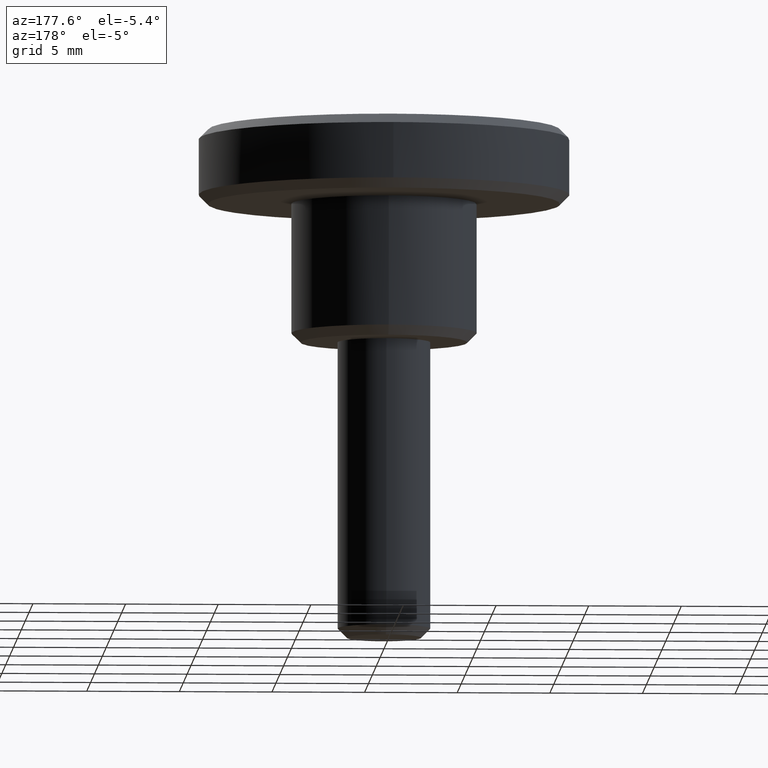
[diagram: clean part render]
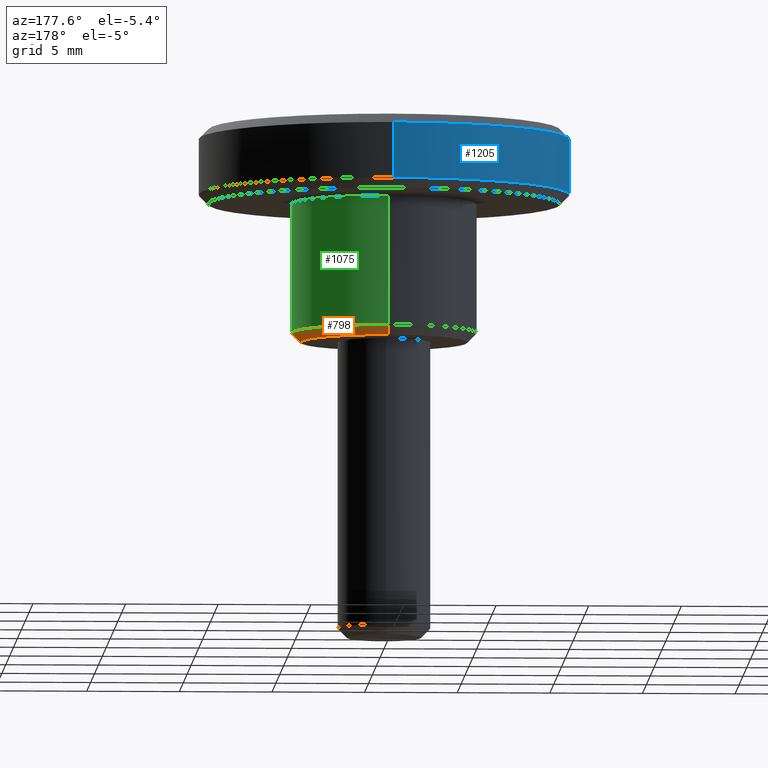
[diagram: same view with three faces highlighted in distinct colors, each labeled with its STEP entity id]
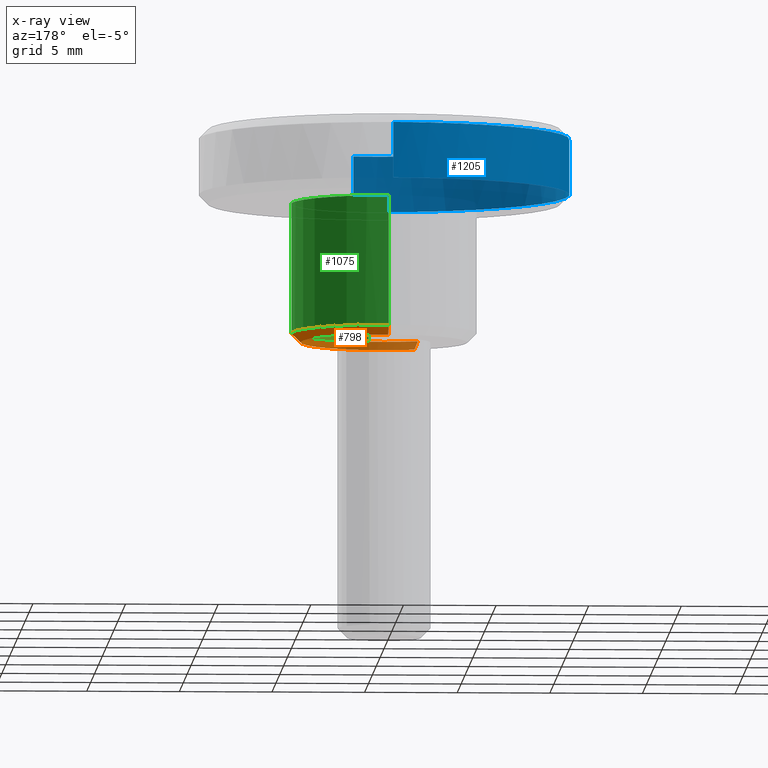
[diagram: x-ray of the same camera — body ghosted, the three highlighted faces saturated]
A machine part, auxiliary view with three faces highlighted in distinct colors.
The next image is the same camera in x-ray (body ghosted, the three faces saturated) — at least one of them is partly hidden behind the body in this view.
Their STEP definitions:

[orange] entity #798 — the highlighted face is a freeform B-spline surface patch.
#677=CARTESIAN_POINT('',(-1.813916751045586,-4.104553845459481,-0.012499999999999));
#678=CARTESIAN_POINT('',(-0.928656247279884,-4.495775137049067,-0.012499999999999));
#679=CARTESIAN_POINT('',(0.039160328048953,-4.487329129750467,-0.012499999999999));
#680=CARTESIAN_POINT('',(4.526489457799420,-4.448168801701514,-0.012499999999999));
#681=CARTESIAN_POINT('',(4.487329129750467,0.039160328048953,-0.012499999999999));
#682=CARTESIAN_POINT('',(4.448168801701514,4.526489457799420,-0.012499999999999));
#683=CARTESIAN_POINT('',(-0.039160328048953,4.487329129750467,-0.012499999999999));
#684=CARTESIAN_POINT('',(-2.026256170161715,-4.585038177925872,0.512812499999944));
#685=CARTESIAN_POINT('',(-1.037365937508121,-5.022056335195270,0.512812499999944));
#686=CARTESIAN_POINT('',(0.043744486227942,-5.012621627460113,0.512812499999944));
#687=CARTESIAN_POINT('',(5.056366113688056,-4.968877141232172,0.512812499999944));
#688=CARTESIAN_POINT('',(5.012621627460113,0.043744486227942,0.512812499999944));
#689=CARTESIAN_POINT('',(4.968877141232172,5.056366113688056,0.512812499999944));
#690=CARTESIAN_POINT('',(-0.043744486227942,5.012621627460113,0.512812499999944));
#698=(BOUNDED_SURFACE()B_SPLINE_SURFACE(2,1,((#677,#684),(#678,#685),(#679,#686),(#680,#687),(#681,#688),(#682,#689),(#683,#690)),.UNSPECIFIED.,.F.,.F.,.U.)B_SPLINE_SURFACE_WITH_KNOTS((3,2,2,3),(2,2),(0.0,2.325539913909386,10.631039606442901,18.936539298976420),(0.0,1.0),.UNSPECIFIED.)GEOMETRIC_REPRESENTATION_ITEM()RATIONAL_B_SPLINE_SURFACE(((0.881905454174416,0.881905454174416),(0.917989898732233,0.917989898732233),(1.0,1.0),(0.707106781186548,0.707106781186548),(1.0,1.0),(0.707106781186548,0.707106781186548),(1.0,1.0)))REPRESENTATION_ITEM('')SURFACE());
#699=CARTESIAN_POINT('',(-2.021077159957113,-4.573319047859597,0.500000000001518));
#700=VERTEX_POINT('',#699);
#701=CARTESIAN_POINT('',(0.620631770546321,-4.961332099882004,0.499999999999943));
#702=VERTEX_POINT('',#701);
#703=CARTESIAN_POINT('',(-2.021077159957113,-4.573319047859597,0.500000000001518));
#704=CARTESIAN_POINT('',(-1.055578086278946,-5.0,0.499999999999945));
#705=CARTESIAN_POINT('',(0.0,-5.0,0.499999999999945));
#706=CARTESIAN_POINT('',(0.311520469513361,-5.000000000000001,0.499999999999945));
#707=CARTESIAN_POINT('',(0.620631770546321,-4.961332099882004,0.499999999999943));
#715=(BOUNDED_CURVE()B_SPLINE_CURVE(2,(#703,#704,#705,#706,#707),.UNSPECIFIED.,.F.,.U.)B_SPLINE_CURVE_WITH_KNOTS((3,2,3),(0.181361578458765,0.250000000000000,0.271473648881002),.UNSPECIFIED.)CURVE()GEOMETRIC_REPRESENTATION_ITEM()RATIONAL_B_SPLINE_CURVE((0.883326595750651,0.919585087122053,1.0,0.974842055438294,0.954005973821274))REPRESENTATION_ITEM(''));
#716=EDGE_CURVE('',#700,#702,#715,.T.);
#717=ORIENTED_EDGE('',*,*,#716,.F.);
#718=CARTESIAN_POINT('',(-1.818969443959424,-4.115987143074317,1.237329E-012));
#719=VERTEX_POINT('',#718);
#720=CARTESIAN_POINT('',(-1.818969443959424,-4.115987143074317,1.237329E-012));
#721=CARTESIAN_POINT('',(-2.021077159957113,-4.573319047859597,0.500000000001518));
#722=QUASI_UNIFORM_CURVE('',1,(#720,#721),.UNSPECIFIED.,.F.,.U.);
#723=EDGE_CURVE('',#719,#700,#722,.T.);
#724=ORIENTED_EDGE('',*,*,#723,.F.);
#725=CARTESIAN_POINT('',(4.500000000000000,0.0,0.0));
#726=VERTEX_POINT('',#725);
#727=CARTESIAN_POINT('',(4.500000000000000,0.0,0.0));
#728=CARTESIAN_POINT('',(4.500000000000000,-4.500000000000000,0.0));
#729=CARTESIAN_POINT('',(0.0,-4.500000000000000,0.0));
#730=CARTESIAN_POINT('',(-0.950020277648890,-4.500000000000001,0.0));
#731=CARTESIAN_POINT('',(-1.818969443959424,-4.115987143074317,1.237329E-012));
#739=(BOUNDED_CURVE()B_SPLINE_CURVE(2,(#727,#728,#729,#730,#731),.UNSPECIFIED.,.F.,.U.)B_SPLINE_CURVE_WITH_KNOTS((3,2,3),(0.500000000000000,0.750000000000000,0.818638421541091),.UNSPECIFIED.)CURVE()GEOMETRIC_REPRESENTATION_ITEM()RATIONAL_B_SPLINE_CURVE((1.0,0.707106781186547,1.0,0.919585087122221,0.883326595750803))REPRESENTATION_ITEM(''));
#740=EDGE_CURVE('',#726,#719,#739,.T.);
#741=ORIENTED_EDGE('',*,*,#740,.F.);
#742=CARTESIAN_POINT('',(-0.039269409742854,4.499828653788793,2.357402E-014));
#743=VERTEX_POINT('',#742);
#744=CARTESIAN_POINT('',(-0.039269409742854,4.499828653788793,2.357402E-014));
#745=CARTESIAN_POINT('',(-0.019635078693328,4.499999999999999,0.0));
#746=CARTESIAN_POINT('',(0.0,4.500000000000000,0.0));
#747=CARTESIAN_POINT('',(4.500000000000000,4.500000000000000,0.0));
#748=CARTESIAN_POINT('',(4.500000000000000,0.0,0.0));
#756=(BOUNDED_CURVE()B_SPLINE_CURVE(2,(#744,#745,#746,#747,#748),.UNSPECIFIED.,.F.,.U.)B_SPLINE_CURVE_WITH_KNOTS((3,2,3),(0.248460105664999,0.250000000000000,0.500000000000000),.UNSPECIFIED.)CURVE()GEOMETRIC_REPRESENTATION_ITEM()RATIONAL_B_SPLINE_CURVE((0.996414028100375,0.998195901566356,1.0,0.707106781186547,1.0))REPRESENTATION_ITEM(''));
#757=EDGE_CURVE('',#743,#726,#756,.T.);
#758=ORIENTED_EDGE('',*,*,#757,.F.);
#759=CARTESIAN_POINT('',(-0.043631956922797,4.999809621608856,0.499999999999845));
#760=VERTEX_POINT('',#759);
#761=CARTESIAN_POINT('',(-0.039269409742854,4.499828653788793,2.357402E-014));
#762=CARTESIAN_POINT('',(-0.043631956922797,4.999809621608856,0.499999999999845));
#763=QUASI_UNIFORM_CURVE('',1,(#761,#762),.UNSPECIFIED.,.F.,.U.);
#764=EDGE_CURVE('',#743,#760,#763,.T.);
#765=ORIENTED_EDGE('',*,*,#764,.T.);
#766=CARTESIAN_POINT('',(5.0,0.0,0.499999999999945));
#767=VERTEX_POINT('',#766);
#768=CARTESIAN_POINT('',(5.0,0.0,0.499999999999945));
#769=CARTESIAN_POINT('',(5.000000000000001,5.000000000000001,0.499999999999945));
#770=CARTESIAN_POINT('',(0.0,5.0,0.499999999999945));
#771=CARTESIAN_POINT('',(-0.021816393798394,4.999999999999999,0.499999999999945));
#772=CARTESIAN_POINT('',(-0.043631956922797,4.999809621608856,0.499999999999845));
#780=(BOUNDED_CURVE()B_SPLINE_CURVE(2,(#768,#769,#770,#771,#772),.UNSPECIFIED.,.F.,.U.)B_SPLINE_CURVE_WITH_KNOTS((3,2,3),(0.500000000000000,0.750000000000000,0.751539868949412),.UNSPECIFIED.)CURVE()GEOMETRIC_REPRESENTATION_ITEM()RATIONAL_B_SPLINE_CURVE((1.0,0.707106781186548,1.0,0.998195931307423,0.996414086849745))REPRESENTATION_ITEM(''));
#781=EDGE_CURVE('',#767,#760,#780,.T.);
#782=ORIENTED_EDGE('',*,*,#781,.F.);
#783=CARTESIAN_POINT('',(0.620631770546321,-4.961332099882004,0.499999999999943));
#784=CARTESIAN_POINT('',(4.999999999999999,-4.413500387880643,0.499999999999945));
#785=CARTESIAN_POINT('',(5.0,0.0,0.499999999999945));
#793=(BOUNDED_CURVE()B_SPLINE_CURVE(2,(#783,#784,#785),.UNSPECIFIED.,.F.,.U.)B_SPLINE_CURVE_WITH_KNOTS((3,3),(0.271473648881002,0.500000000000000),.UNSPECIFIED.)CURVE()GEOMETRIC_REPRESENTATION_ITEM()RATIONAL_B_SPLINE_CURVE((0.954005973821274,0.732264725748254,1.0))REPRESENTATION_ITEM(''));
#794=EDGE_CURVE('',#702,#767,#793,.T.);
#795=ORIENTED_EDGE('',*,*,#794,.F.);
#796=EDGE_LOOP('',(#717,#724,#741,#758,#765,#782,#795));
#797=FACE_OUTER_BOUND('',#796,.T.);
#798=ADVANCED_FACE('',(#797),#698,.T.);

[blue] entity #1205 — the highlighted face is a freeform B-spline surface patch.
#271=CARTESIAN_POINT('',(-9.742181531784189,-2.256080451091705,10.999999999998360));
#272=VERTEX_POINT('',#271);
#273=CARTESIAN_POINT('',(-10.0,0.0,11.000000000000121));
#274=VERTEX_POINT('',#273);
#275=CARTESIAN_POINT('',(-9.742181531784189,-2.256080451091705,10.999999999998366));
#276=CARTESIAN_POINT('',(-10.0,-1.142771606812818,11.000000000000115));
#277=CARTESIAN_POINT('',(-10.0,0.0,11.000000000000121));
#285=(BOUNDED_CURVE()B_SPLINE_CURVE(2,(#275,#276,#277),.UNSPECIFIED.,.F.,.U.)B_SPLINE_CURVE_WITH_KNOTS((3,3),(0.961422971784112,1.0),.UNSPECIFIED.)CURVE()GEOMETRIC_REPRESENTATION_ITEM()RATIONAL_B_SPLINE_CURVE((0.923556557441979,0.954804200134364,1.0))REPRESENTATION_ITEM(''));
#286=EDGE_CURVE('',#272,#274,#285,.T.);
#344=CARTESIAN_POINT('',(-0.087265355018777,-9.999619230646168,10.999999999995360));
#345=VERTEX_POINT('',#344);
#351=CARTESIAN_POINT('',(1.241277931634470,-9.922662399599856,11.000000000000160));
#352=VERTEX_POINT('',#351);
#353=CARTESIAN_POINT('',(1.241277931634471,-9.922662399599856,11.000000000000162));
#354=CARTESIAN_POINT('',(0.623048218524957,-10.0,11.000000000000123));
#355=CARTESIAN_POINT('',(0.0,-10.0,11.000000000000121));
#356=CARTESIAN_POINT('',(-0.043633508242023,-10.0,11.000000000000121));
#357=CARTESIAN_POINT('',(-0.087265355018777,-9.999619230646168,10.999999999995355));
#365=(BOUNDED_CURVE()B_SPLINE_CURVE(2,(#353,#354,#355,#356,#357),.UNSPECIFIED.,.F.,.U.)B_SPLINE_CURVE_WITH_KNOTS((3,2,3),(0.728526106536804,0.750000000000000,0.751539894336220),.UNSPECIFIED.)CURVE()GEOMETRIC_REPRESENTATION_ITEM()RATIONAL_B_SPLINE_CURVE((0.954005499181070,0.974841768892429,1.0,0.998195901564927,0.996414028097552))REPRESENTATION_ITEM(''));
#366=EDGE_CURVE('',#352,#345,#365,.T.);
#383=CARTESIAN_POINT('',(-0.087256569852172,9.999619307300673,11.000000000000121));
#384=VERTEX_POINT('',#383);
#400=CARTESIAN_POINT('',(-10.0,0.0,11.000000000000121));
#401=CARTESIAN_POINT('',(-10.000000000000002,9.913120815416164,11.000000000000119));
#402=CARTESIAN_POINT('',(-0.087256569852172,9.999619307300673,11.000000000000124));
#410=(BOUNDED_CURVE()B_SPLINE_CURVE(2,(#400,#401,#402),.UNSPECIFIED.,.F.,.U.)B_SPLINE_CURVE_WITH_KNOTS((3,3),(0.0,0.248460260414681),.UNSPECIFIED.)CURVE()GEOMETRIC_REPRESENTATION_ITEM()RATIONAL_B_SPLINE_CURVE((1.0,0.708910698319662,0.996414386234719))REPRESENTATION_ITEM(''));
#411=EDGE_CURVE('',#274,#384,#410,.T.);
#430=CARTESIAN_POINT('',(-0.087265355018777,-9.999619230646168,10.999999999995355));
#431=CARTESIAN_POINT('',(-7.964864184829107,-9.930872467089873,11.000000000000121));
#432=CARTESIAN_POINT('',(-9.742181531784189,-2.256080451091705,10.999999999998369));
#440=(BOUNDED_CURVE()B_SPLINE_CURVE(2,(#430,#431,#432),.UNSPECIFIED.,.F.,.U.)B_SPLINE_CURVE_WITH_KNOTS((3,3),(0.751539894336220,0.961422971784112),.UNSPECIFIED.)CURVE()GEOMETRIC_REPRESENTATION_ITEM()RATIONAL_B_SPLINE_CURVE((0.996414028097553,0.753549905437383,0.923556557441980))REPRESENTATION_ITEM(''));
#441=EDGE_CURVE('',#345,#272,#440,.T.);
#538=CARTESIAN_POINT('',(0.087265354983874,-9.999619230641745,8.000000000000121));
#539=VERTEX_POINT('',#538);
#545=CARTESIAN_POINT('',(-10.0,0.0,8.000000000000119));
#546=VERTEX_POINT('',#545);
#547=CARTESIAN_POINT('',(-10.0,0.0,8.000000000000119));
#548=CARTESIAN_POINT('',(-10.000000000000002,-10.000000000000002,8.000000000000119));
#549=CARTESIAN_POINT('',(0.0,-10.0,8.000000000000119));
#550=CARTESIAN_POINT('',(0.043633508207148,-10.0,8.000000000000119));
#551=CARTESIAN_POINT('',(0.087265354983874,-9.999619230641745,8.000000000000121));
#559=(BOUNDED_CURVE()B_SPLINE_CURVE(2,(#547,#548,#549,#550,#551),.UNSPECIFIED.,.F.,.U.)B_SPLINE_CURVE_WITH_KNOTS((3,2,3),(0.0,0.250000000000000,0.251539894334992),.UNSPECIFIED.)CURVE()GEOMETRIC_REPRESENTATION_ITEM()RATIONAL_B_SPLINE_CURVE((1.0,0.707106781186548,1.0,0.998195901566367,0.996414028100395))REPRESENTATION_ITEM(''));
#560=EDGE_CURVE('',#546,#539,#559,.T.);
#562=CARTESIAN_POINT('',(-0.087256366048750,9.999619309078877,8.000000000000119));
#563=VERTEX_POINT('',#562);
#564=CARTESIAN_POINT('',(-0.087256366048750,9.999619309078877,8.000000000000119));
#565=CARTESIAN_POINT('',(-10.0,9.913121017464341,8.000000000000119));
#566=CARTESIAN_POINT('',(-10.0,0.0,8.000000000000119));
#574=(BOUNDED_CURVE()B_SPLINE_CURVE(2,(#564,#565,#566),.UNSPECIFIED.,.F.,.U.)B_SPLINE_CURVE_WITH_KNOTS((3,3),(0.751539735995331,1.0),.UNSPECIFIED.)CURVE()GEOMETRIC_REPRESENTATION_ITEM()RATIONAL_B_SPLINE_CURVE((0.996414394542968,0.708910694113730,1.0))REPRESENTATION_ITEM(''));
#575=EDGE_CURVE('',#563,#546,#574,.T.);
#645=CARTESIAN_POINT('',(1.241271863740393,-9.922663158659514,8.000000000000119));
#646=VERTEX_POINT('',#645);
#660=CARTESIAN_POINT('',(0.087265354983874,-9.999619230641745,8.000000000000121));
#661=CARTESIAN_POINT('',(0.666497465630396,-9.994564348591922,8.000000000000117));
#662=CARTESIAN_POINT('',(1.241271863740394,-9.922663158659514,8.000000000000121));
#670=(BOUNDED_CURVE()B_SPLINE_CURVE(2,(#660,#661,#662),.UNSPECIFIED.,.F.,.U.)B_SPLINE_CURVE_WITH_KNOTS((3,3),(0.251539894334992,0.271473790333043),.UNSPECIFIED.)CURVE()GEOMETRIC_REPRESENTATION_ITEM()RATIONAL_B_SPLINE_CURVE((0.996414028100395,0.973347717935318,0.954005699316995))REPRESENTATION_ITEM(''));
#671=EDGE_CURVE('',#539,#646,#670,.T.);
#1155=CARTESIAN_POINT('',(1.241271863740393,-9.922663158659514,8.000000000000119));
#1156=CARTESIAN_POINT('',(1.241277931634470,-9.922662399599856,11.000000000000160));
#1157=QUASI_UNIFORM_CURVE('',1,(#1155,#1156),.UNSPECIFIED.,.F.,.U.);
#1158=EDGE_CURVE('',#646,#352,#1157,.T.);
#1163=CARTESIAN_POINT('',(-0.087256366048750,9.999619309078877,8.000000000000119));
#1164=CARTESIAN_POINT('',(-0.087256569852172,9.999619307300673,11.000000000000121));
#1165=QUASI_UNIFORM_CURVE('',1,(#1163,#1164),.UNSPECIFIED.,.F.,.U.);
#1166=EDGE_CURVE('',#563,#384,#1165,.T.);
#1172=CARTESIAN_POINT('',(-0.087265354983739,9.999619230641709,7.925000000000119));
#1173=CARTESIAN_POINT('',(-10.086884585625448,9.912353875657971,7.925000000000118));
#1174=CARTESIAN_POINT('',(-9.999619230641709,-0.087265354983739,7.925000000000119));
#1175=CARTESIAN_POINT('',(-9.912353875657971,-10.086884585625448,7.925000000000118));
#1176=CARTESIAN_POINT('',(0.087265354983739,-9.999619230641709,7.925000000000119));
#1177=CARTESIAN_POINT('',(0.666501589581736,-9.994564312602755,7.925000000000119));
#1178=CARTESIAN_POINT('',(1.241280020798293,-9.922662138255385,7.925000000000121));
#1179=CARTESIAN_POINT('',(-0.087265354983739,9.999619230641709,11.076875000000120));
#1180=CARTESIAN_POINT('',(-10.086884585625448,9.912353875657971,11.076875000000122));
#1181=CARTESIAN_POINT('',(-9.999619230641709,-0.087265354983739,11.076875000000120));
#1182=CARTESIAN_POINT('',(-9.912353875657971,-10.086884585625448,11.076875000000122));
#1183=CARTESIAN_POINT('',(0.087265354983739,-9.999619230641709,11.076875000000120));
#1184=CARTESIAN_POINT('',(0.666501589581736,-9.994564312602755,11.076875000000122));
#1185=CARTESIAN_POINT('',(1.241280020798293,-9.922662138255385,11.076875000000120));
#1193=(BOUNDED_SURFACE()B_SPLINE_SURFACE(2,1,((#1172,#1179),(#1173,#1180),(#1174,#1181),(#1175,#1182),(#1176,#1183),(#1177,#1184),(#1178,#1185)),.UNSPECIFIED.,.F.,.F.,.U.)B_SPLINE_SURFACE_WITH_KNOTS((3,2,2,3),(2,2),(0.0,16.568542494923800,33.137084989847587,34.462568389441500),(0.0,3.151875000000003),.UNSPECIFIED.)GEOMETRIC_REPRESENTATION_ITEM()RATIONAL_B_SPLINE_SURFACE(((1.0,1.0),(0.707106781186548,0.707106781186548),(1.0,1.0),(0.707106781186548,0.707106781186548),(1.0,1.0),(0.976568542494924,0.976568542494924),(0.956886118190660,0.956886118190660)))REPRESENTATION_ITEM('')SURFACE());
#1194=ORIENTED_EDGE('',*,*,#366,.T.);
#1195=ORIENTED_EDGE('',*,*,#441,.T.);
#1196=ORIENTED_EDGE('',*,*,#286,.T.);
#1197=ORIENTED_EDGE('',*,*,#411,.T.);
#1198=ORIENTED_EDGE('',*,*,#1166,.F.);
#1199=ORIENTED_EDGE('',*,*,#575,.T.);
#1200=ORIENTED_EDGE('',*,*,#560,.T.);
#1201=ORIENTED_EDGE('',*,*,#671,.T.);
#1202=ORIENTED_EDGE('',*,*,#1158,.T.);
#1203=EDGE_LOOP('',(#1194,#1195,#1196,#1197,#1198,#1199,#1200,#1201,#1202));
#1204=FACE_OUTER_BOUND('',#1203,.T.);
#1205=ADVANCED_FACE('',(#1204),#1193,.T.);

[green] entity #1075 — the highlighted face is a freeform B-spline surface patch.
#701=CARTESIAN_POINT('',(0.620631770546321,-4.961332099882004,0.499999999999943));
#702=VERTEX_POINT('',#701);
#759=CARTESIAN_POINT('',(-0.043631956922797,4.999809621608856,0.499999999999845));
#760=VERTEX_POINT('',#759);
#766=CARTESIAN_POINT('',(5.0,0.0,0.499999999999945));
#767=VERTEX_POINT('',#766);
#768=CARTESIAN_POINT('',(5.0,0.0,0.499999999999945));
#769=CARTESIAN_POINT('',(5.000000000000001,5.000000000000001,0.499999999999945));
#770=CARTESIAN_POINT('',(0.0,5.0,0.499999999999945));
#771=CARTESIAN_POINT('',(-0.021816393798394,4.999999999999999,0.499999999999945));
#772=CARTESIAN_POINT('',(-0.043631956922797,4.999809621608856,0.499999999999845));
#780=(BOUNDED_CURVE()B_SPLINE_CURVE(2,(#768,#769,#770,#771,#772),.UNSPECIFIED.,.F.,.U.)B_SPLINE_CURVE_WITH_KNOTS((3,2,3),(0.500000000000000,0.750000000000000,0.751539868949412),.UNSPECIFIED.)CURVE()GEOMETRIC_REPRESENTATION_ITEM()RATIONAL_B_SPLINE_CURVE((1.0,0.707106781186548,1.0,0.998195931307423,0.996414086849745))REPRESENTATION_ITEM(''));
#781=EDGE_CURVE('',#767,#760,#780,.T.);
#783=CARTESIAN_POINT('',(0.620631770546321,-4.961332099882004,0.499999999999943));
#784=CARTESIAN_POINT('',(4.999999999999999,-4.413500387880643,0.499999999999945));
#785=CARTESIAN_POINT('',(5.0,0.0,0.499999999999945));
#793=(BOUNDED_CURVE()B_SPLINE_CURVE(2,(#783,#784,#785),.UNSPECIFIED.,.F.,.U.)B_SPLINE_CURVE_WITH_KNOTS((3,3),(0.271473648881002,0.500000000000000),.UNSPECIFIED.)CURVE()GEOMETRIC_REPRESENTATION_ITEM()RATIONAL_B_SPLINE_CURVE((0.954005973821274,0.732264725748254,1.0))REPRESENTATION_ITEM(''));
#794=EDGE_CURVE('',#702,#767,#793,.T.);
#1005=CARTESIAN_POINT('',(0.550585465188623,-4.970094574941387,0.324999999999944));
#1006=CARTESIAN_POINT('',(0.585526482416144,-4.965723612191010,0.324999999999943));
#1007=CARTESIAN_POINT('',(5.038664152512223,-4.408656290666105,0.324999999999943));
#1008=CARTESIAN_POINT('',(4.999809615320855,0.043632677491869,0.324999999999944));
#1009=CARTESIAN_POINT('',(4.956176937828985,5.043442292812725,0.324999999999944));
#1010=CARTESIAN_POINT('',(-0.077477005962917,4.999514260340819,0.324999999999943));
#1011=CARTESIAN_POINT('',(-0.111132075387575,4.999220556999463,0.324999999999943));
#1012=CARTESIAN_POINT('',(0.550585465188623,-4.970094574941387,7.679375000000003));
#1013=CARTESIAN_POINT('',(0.585526482416144,-4.965723612191010,7.679375000000002));
#1014=CARTESIAN_POINT('',(5.038664152512223,-4.408656290666105,7.679375000000002));
#1015=CARTESIAN_POINT('',(4.999809615320855,0.043632677491869,7.679375000000003));
#1016=CARTESIAN_POINT('',(4.956176937828985,5.043442292812725,7.679375000000004));
#1017=CARTESIAN_POINT('',(-0.077477005962917,4.999514260340819,7.679374999999999));
#1018=CARTESIAN_POINT('',(-0.111132075387575,4.999220556999463,7.679375000000003));
#1026=(BOUNDED_SURFACE()B_SPLINE_SURFACE(2,1,((#1005,#1012),(#1006,#1013),(#1007,#1014),(#1008,#1015),(#1009,#1016),(#1010,#1017),(#1011,#1018)),.UNSPECIFIED.,.F.,.F.,.U.)B_SPLINE_SURFACE_WITH_KNOTS((3,1,2,1,3),(2,2),(0.0,0.079538353903299,7.701067901568245,15.985339149030141,16.064867349322590),(0.0,7.354375000000061),.UNSPECIFIED.)GEOMETRIC_REPRESENTATION_ITEM()RATIONAL_B_SPLINE_SURFACE(((0.961610455381053,0.961610455381053),(0.959248286785856,0.959248286785856),(0.730538238691624,0.730538238691624),(1.0,1.0),(0.707106781186548,0.707106781186548),(1.002811746486118,1.002811746486118),(1.005623492972235,1.005623492972235)))REPRESENTATION_ITEM('')SURFACE());
#1027=ORIENTED_EDGE('',*,*,#794,.T.);
#1028=ORIENTED_EDGE('',*,*,#781,.T.);
#1029=CARTESIAN_POINT('',(-0.043630701762436,4.999809632562005,7.500000000000000));
#1030=VERTEX_POINT('',#1029);
#1031=CARTESIAN_POINT('',(-0.043631956922797,4.999809621608856,0.499999999999845));
#1032=CARTESIAN_POINT('',(-0.043630701762436,4.999809632562005,7.500000000000000));
#1033=QUASI_UNIFORM_CURVE('',1,(#1031,#1032),.UNSPECIFIED.,.F.,.U.);
#1034=EDGE_CURVE('',#760,#1030,#1033,.T.);
#1035=ORIENTED_EDGE('',*,*,#1034,.T.);
#1036=CARTESIAN_POINT('',(5.0,0.0,7.500000000000000));
#1037=VERTEX_POINT('',#1036);
#1038=CARTESIAN_POINT('',(-0.043630701762436,4.999809632562005,7.500000000000000));
#1039=CARTESIAN_POINT('',(-0.021815766182370,5.0,7.500000000000000));
#1040=CARTESIAN_POINT('',(0.0,5.0,7.500000000000000));
#1041=CARTESIAN_POINT('',(5.000000000000001,5.000000000000001,7.500000000000000));
#1042=CARTESIAN_POINT('',(5.0,0.0,7.500000000000000));
#1050=(BOUNDED_CURVE()B_SPLINE_CURVE(2,(#1038,#1039,#1040,#1041,#1042),.UNSPECIFIED.,.F.,.U.)B_SPLINE_CURVE_WITH_KNOTS((3,2,3),(0.248460175269763,0.250000000000000,0.500000000000000),.UNSPECIFIED.)CURVE()GEOMETRIC_REPRESENTATION_ITEM()RATIONAL_B_SPLINE_CURVE((0.996414189185345,0.998195983113410,1.0,0.707106781186548,1.0))REPRESENTATION_ITEM(''));
#1051=EDGE_CURVE('',#1030,#1037,#1050,.T.);
#1052=ORIENTED_EDGE('',*,*,#1051,.T.);
#1053=CARTESIAN_POINT('',(0.620634759306516,-4.961331726009916,7.500000000000000));
#1054=VERTEX_POINT('',#1053);
#1055=CARTESIAN_POINT('',(5.0,0.0,7.500000000000000));
#1056=CARTESIAN_POINT('',(5.000000000000001,-4.413497708419436,7.500000000000000));
#1057=CARTESIAN_POINT('',(0.620634759306516,-4.961331726009916,7.500000000000000));
#1065=(BOUNDED_CURVE()B_SPLINE_CURVE(2,(#1055,#1056,#1057),.UNSPECIFIED.,.F.,.U.)B_SPLINE_CURVE_WITH_KNOTS((3,3),(0.500000000000000,0.728526249524831),.UNSPECIFIED.)CURVE()GEOMETRIC_REPRESENTATION_ITEM()RATIONAL_B_SPLINE_CURVE((1.0,0.732264844773224,0.954005776665837))REPRESENTATION_ITEM(''));
#1066=EDGE_CURVE('',#1037,#1054,#1065,.T.);
#1067=ORIENTED_EDGE('',*,*,#1066,.T.);
#1068=CARTESIAN_POINT('',(0.620631770546321,-4.961332099882004,0.499999999999943));
#1069=CARTESIAN_POINT('',(0.620634759306516,-4.961331726009916,7.500000000000000));
#1070=QUASI_UNIFORM_CURVE('',1,(#1068,#1069),.UNSPECIFIED.,.F.,.U.);
#1071=EDGE_CURVE('',#702,#1054,#1070,.T.);
#1072=ORIENTED_EDGE('',*,*,#1071,.F.);
#1073=EDGE_LOOP('',(#1027,#1028,#1035,#1052,#1067,#1072));
#1074=FACE_OUTER_BOUND('',#1073,.T.);
#1075=ADVANCED_FACE('',(#1074),#1026,.T.);